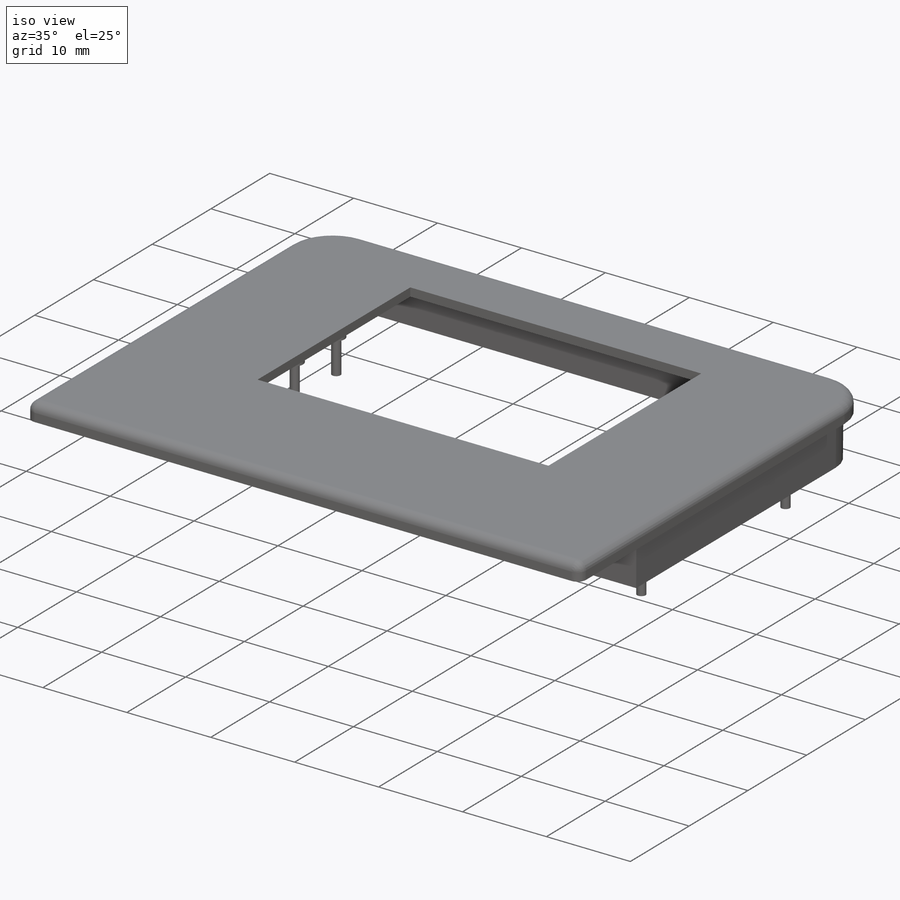
[diagram: iso view]
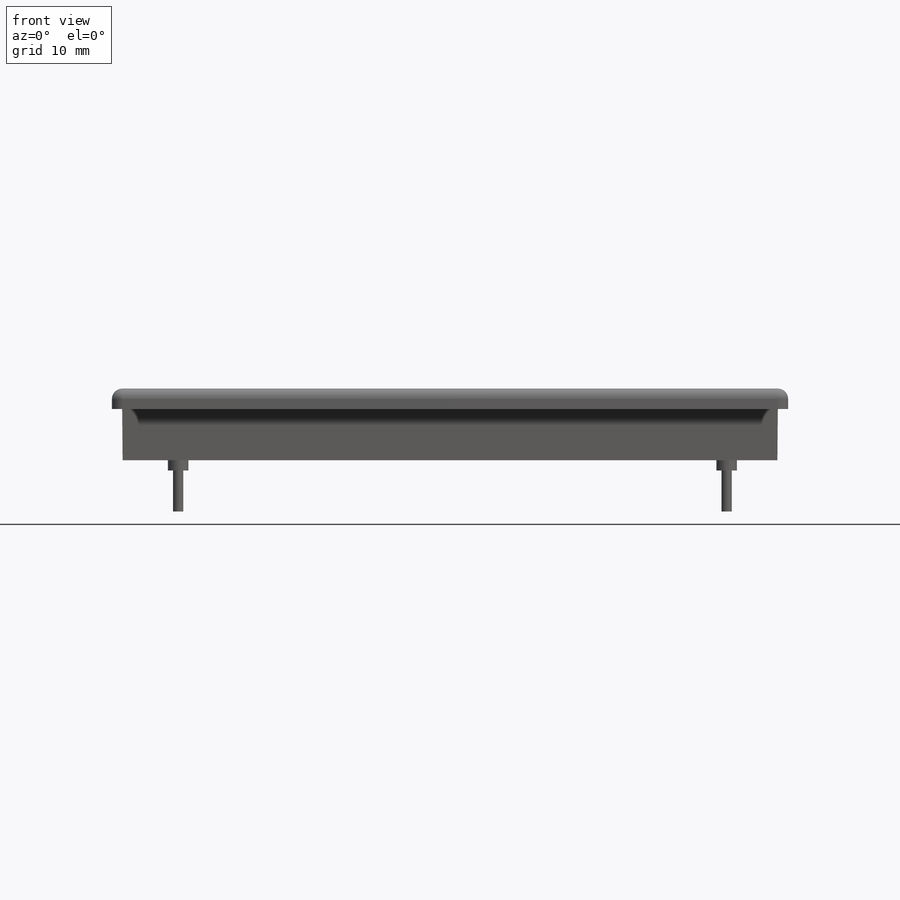
[diagram: front view]
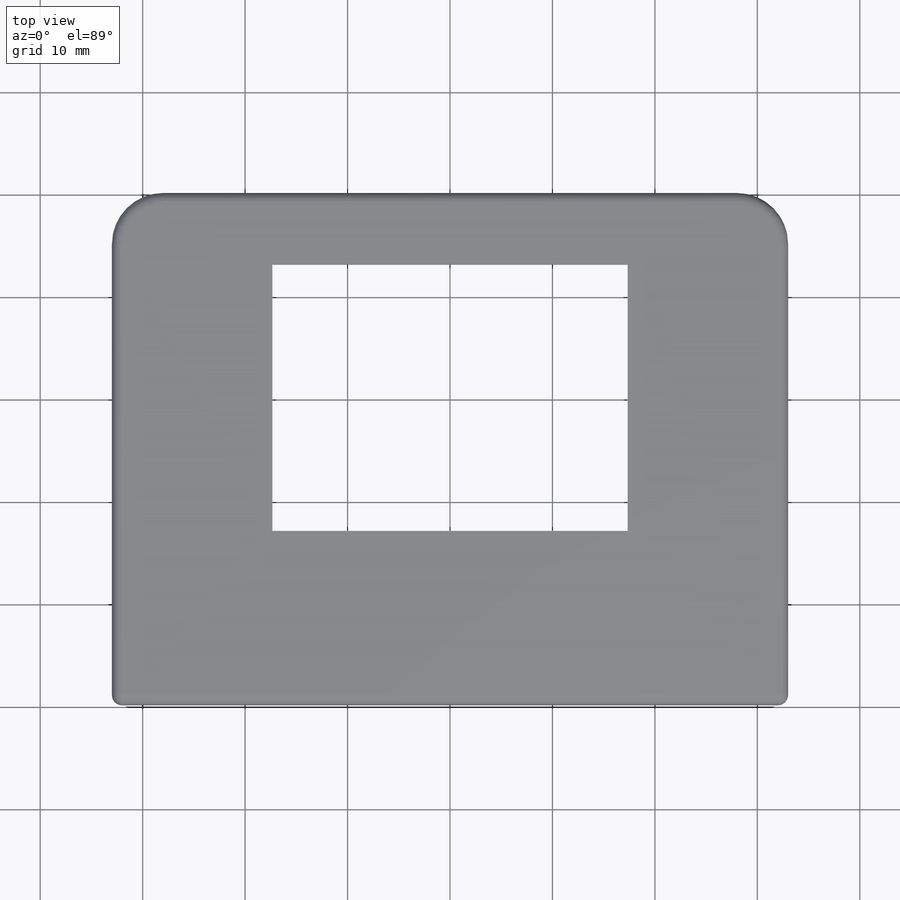
[diagram: top view]
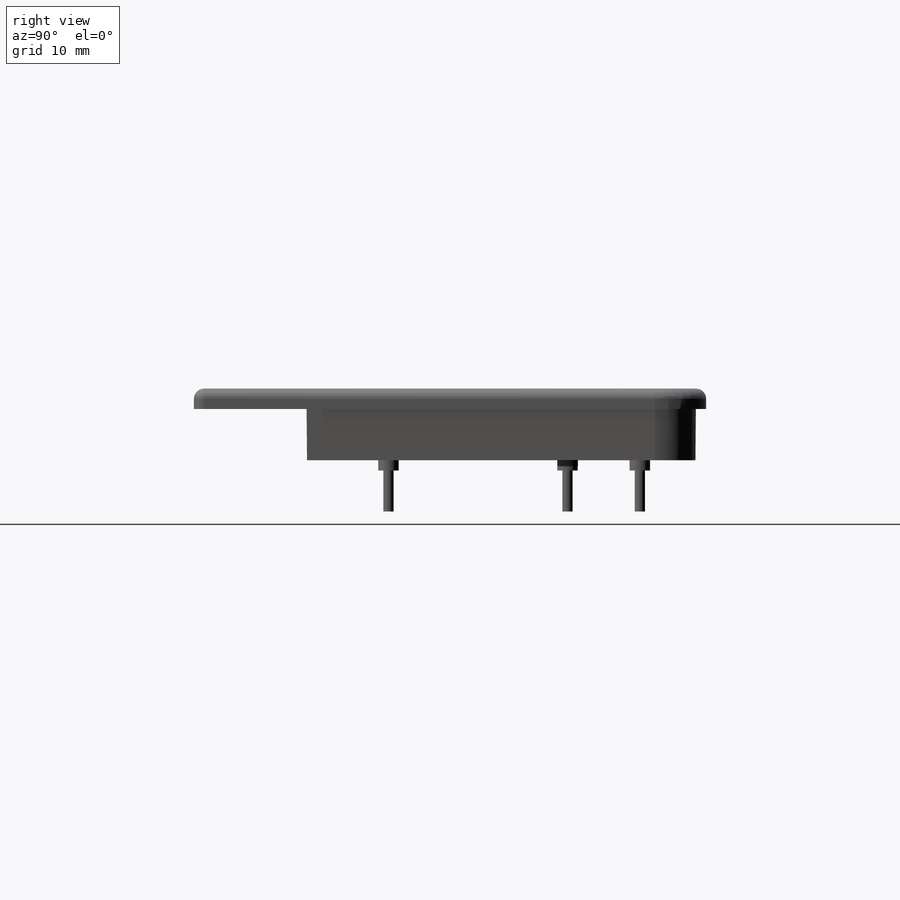
[diagram: right view]
SOLIDWORKS PART (.sldprt)
format: sldprt  version: not decoded by parser v0  size: 654,336 bytes
history: native  units: mm
features: sketch x10, cut_extrude x5, extrude x4, fillet x3, material x1 (+12 scaffold rows collapsed)
feature tree (35):
  scaffold x12  (default folders/planes/origin — collapsed)
  material  "Material <not specified>"
  sketch  "Sketch1"  dims[D1=60.96mm D2=104.14mm D3=10.0mm D4=50.0mm D5=66.0mm D6=4.52mm]
  extrude  "Extrude1"  Depth=21mm
  fillet  "Fillet1"  Radius=1mm
  fillet  "Fillet2"  Radius=5mm
  sketch  "Sketch3"  dims[c1.D1=2.0mm c1.D2=5.0mm c1.D5=2.0mm c2.D1=13.97mm c2.D2=60.96mm c2.D3=60.96mm c2.D4=13.97mm c3.D1=2.0mm]
  cut_extrude  "Cut-Extrude1"  Depth=10mm
  fillet  "Fillet3"  Radius=0.5mm
  sketch  "Sketch4"  dims[D1=2.0mm D2=2.0mm]
  cut_extrude  "Cut-Extrude2"  [1 undecoded]
  sketch  "Sketch5"  dims[D3=10.0mm D4=1.0mm D1=1.0mm D2=1.0mm]
  extrude  "fitting extrude"  Depth=5mm
  sketch  "Sketch6"  dims[c1.D1=25.0mm c1.D2=35.0mm c1.D3=25.0mm c2.D1=~31.362027mm c2.D2=2.0mm c2.D3=~233.130102deg c3.D1=~53.130102deg]
  cut_extrude  "transparent lid"  Depth=1mm
  sketch  "Sketch7"  dims[c1.D1=43.18mm c1.D2=~38.666667mm c1.D3=30.0mm c1.D4=25.908mm c2.D1=26.0mm c2.D3=~233.130102deg c3.D1=2.0mm]
  cut_extrude  "lcd"  [1 undecoded]
  sketch  "Sketch9"  dims[c1.D3=10.0mm c1.D4=2.0mm c1.D5=1.0mm c1.D8=2.0mm c1.D1=5.0mm c1.D2=5.0mm c2.D1=10.0mm c2.D2=10.0mm c2.D6=3.0mm c2.D7=4.0mm c3.D6=8.0mm c3.D7=5.0mm c3.D8=~8.043634mm c3.D9=~4.479366mm c3.D10=8.0mm]
  extrude  "dualchip"  Depth=6mm
  sketch  "Sketch10"  dims[c1.D2=1.0mm c1.D5=1.4mm c1.D6=1.0mm c1.D1=1.0mm c2.D2=2.0mm c2.D1=1.0mm c3.D2=0.0mm c3.D1=0.5mm c4.D2=0.3mm c4.D3=0.5mm c4.D4=0.5mm]
  extrude  "tutup dual chip"  Depth=4mm
  sketch  "Sketch11"  dims[D1=58.0mm D2=32.0mm D3=~7.071068mm]
  sketch  "Sketch12"  dims[c1.D1=7.0mm c1.D2=7.0mm c1.D3=7.0mm c2.D1=12.0mm]
  cut_extrude  "Cut-Extrude3"  [1 undecoded]
decode coverage: 19 of 22 modeling features carry decoded parameters
note: ~ marks probable driven/reference dimensions
note: 3 parameter values undecoded
summary: no parameter record found for 3 features
note: suppression state not decoded; provenance and decode notes live in map.json
